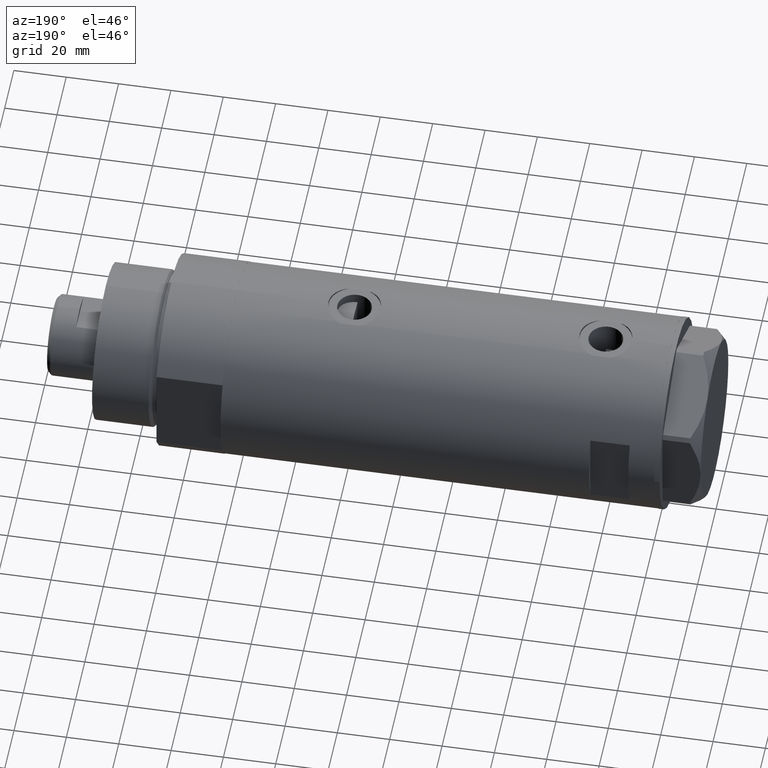
[diagram: clean part render]
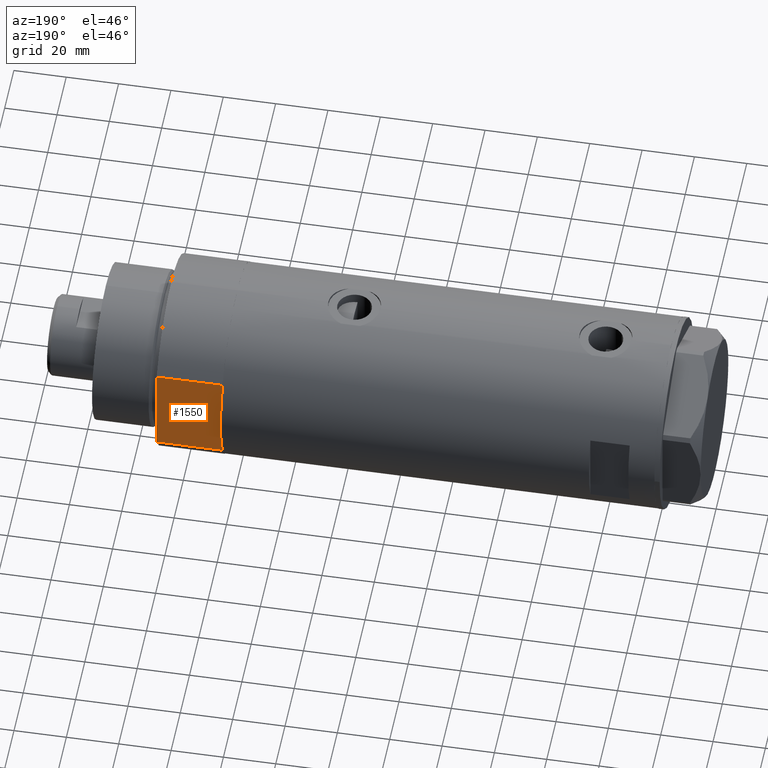
[diagram: same view with one face highlighted and labeled with its STEP entity id]
A machine part, auxiliary view. The second image highlights one B-rep face of the part: STEP entity #1550.
In plain terms, the highlighted planar face has unit normal (0, -1, -0).
Its self-contained STEP definition (entity closure, byte-faithful):
#384 = DIRECTION ( 'NONE',  ( -0.000000000000000000, -0.000000000000000000, 1.000000000000000000 ) ) ;
#663 = EDGE_LOOP ( 'NONE', ( #1141, #1402, #2368, #3779, #676 ) ) ;
#676 = ORIENTED_EDGE ( 'NONE', *, *, #775, .T. ) ;
#775 = EDGE_CURVE ( 'NONE', #1671, #2070, #992, .T. ) ;
#836 = CARTESIAN_POINT ( 'NONE',  ( -17.55704986607943496, 32.00000000000000000, 25.19999999999999929 ) ) ;
#861 = AXIS2_PLACEMENT_3D ( 'NONE', #1342, #4112, #3788 ) ;
#992 = LINE ( 'NONE', #4184, #3086 ) ;
#1091 = LINE ( 'NONE', #2756, #1801 ) ;
#1141 = ORIENTED_EDGE ( 'NONE', *, *, #2436, .T. ) ;
#1152 = CARTESIAN_POINT ( 'NONE',  ( -17.55704986607943141, 32.00000000000000000, 0.000000000000000000 ) ) ;
#1176 = LINE ( 'NONE', #1152, #2674 ) ;
#1325 = DIRECTION ( 'NONE',  ( -0.000000000000000000, -0.000000000000000000, 1.000000000000000000 ) ) ;
#1342 = CARTESIAN_POINT ( 'NONE',  ( -17.55704986607943141, 32.00000000000000000, 0.000000000000000000 ) ) ;
#1402 = ORIENTED_EDGE ( 'NONE', *, *, #3210, .F. ) ;
#1550 = ADVANCED_FACE ( 'NONE', ( #1678 ), #3061, .F. ) ;
#1671 = VERTEX_POINT ( 'NONE', #3754 ) ;
#1678 = FACE_OUTER_BOUND ( 'NONE', #663, .T. ) ;
#1732 = CARTESIAN_POINT ( 'NONE',  ( 17.55704986607943496, 32.00000000000000000, 0.000000000000000000 ) ) ;
#1801 = VECTOR ( 'NONE', #1325, 1000.000000000000000 ) ;
#1879 = LINE ( 'NONE', #2915, #2750 ) ;
#1933 = EDGE_CURVE ( 'NONE', #4227, #4018, #4099, .T. ) ;
#2070 = VERTEX_POINT ( 'NONE', #836 ) ;
#2232 = DIRECTION ( 'NONE',  ( 1.000000000000000000, 0.000000000000000000, 0.000000000000000000 ) ) ;
#2368 = ORIENTED_EDGE ( 'NONE', *, *, #1933, .F. ) ;
#2436 = EDGE_CURVE ( 'NONE', #2070, #2592, #1879, .T. ) ;
#2538 = VECTOR ( 'NONE', #3795, 1000.000000000000000 ) ;
#2592 = VERTEX_POINT ( 'NONE', #3972 ) ;
#2674 = VECTOR ( 'NONE', #2232, 1000.000000000000000 ) ;
#2710 = EDGE_CURVE ( 'NONE', #1671, #4227, #1176, .T. ) ;
#2750 = VECTOR ( 'NONE', #3591, 1000.000000000000000 ) ;
#2756 = CARTESIAN_POINT ( 'NONE',  ( 17.55704986607943141, 32.00000000000000000, 0.000000000000000000 ) ) ;
#2915 = CARTESIAN_POINT ( 'NONE',  ( -17.55704986607943141, 32.00000000000000000, 25.19999999999999929 ) ) ;
#3061 = PLANE ( 'NONE',  #861 ) ;
#3086 = VECTOR ( 'NONE', #384, 1000.000000000000000 ) ;
#3210 = EDGE_CURVE ( 'NONE', #4018, #2592, #1091, .T. ) ;
#3430 = CARTESIAN_POINT ( 'NONE',  ( -17.55704986607943141, 32.00000000000000000, 0.000000000000000000 ) ) ;
#3591 = DIRECTION ( 'NONE',  ( 1.000000000000000000, 0.000000000000000000, 0.000000000000000000 ) ) ;
#3754 = CARTESIAN_POINT ( 'NONE',  ( -17.55704986607943141, 32.00000000000000000, 0.000000000000000000 ) ) ;
#3779 = ORIENTED_EDGE ( 'NONE', *, *, #2710, .F. ) ;
#3788 = DIRECTION ( 'NONE',  ( 0.000000000000000000, -0.000000000000000000, -1.000000000000000000 ) ) ;
#3795 = DIRECTION ( 'NONE',  ( 1.000000000000000000, 0.000000000000000000, 0.000000000000000000 ) ) ;
#3972 = CARTESIAN_POINT ( 'NONE',  ( 17.55704986607943496, 32.00000000000000000, 25.19999999999999929 ) ) ;
#4018 = VERTEX_POINT ( 'NONE', #1732 ) ;
#4099 = LINE ( 'NONE', #3430, #2538 ) ;
#4112 = DIRECTION ( 'NONE',  ( 0.000000000000000000, -1.000000000000000000, 0.000000000000000000 ) ) ;
#4118 = CARTESIAN_POINT ( 'NONE',  ( 0.000000000000000000, 32.00000000000000000, 0.000000000000000000 ) ) ;
#4184 = CARTESIAN_POINT ( 'NONE',  ( -17.55704986607943141, 32.00000000000000000, 0.000000000000000000 ) ) ;
#4227 = VERTEX_POINT ( 'NONE', #4118 ) ;